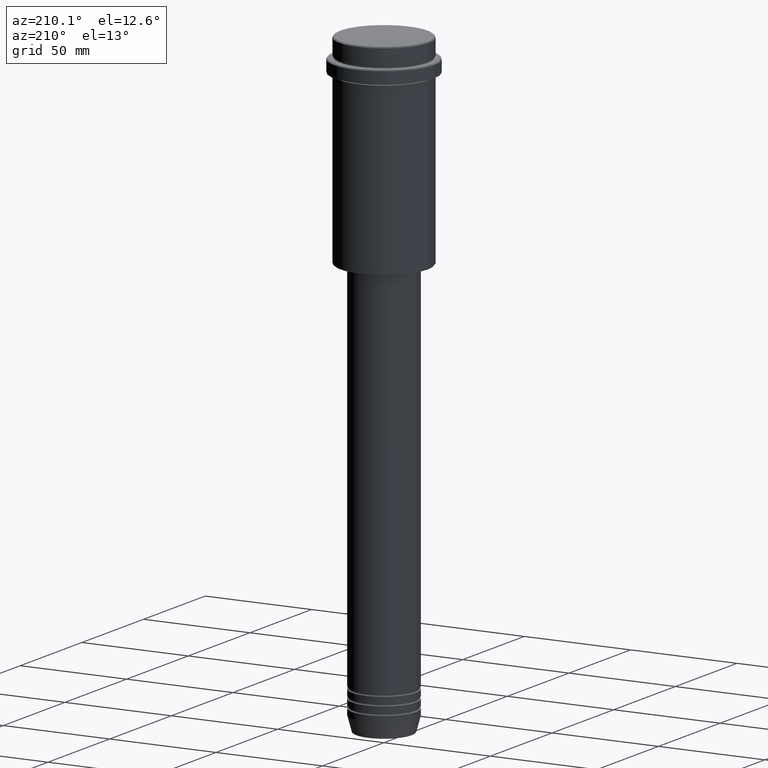
[diagram: clean part render]
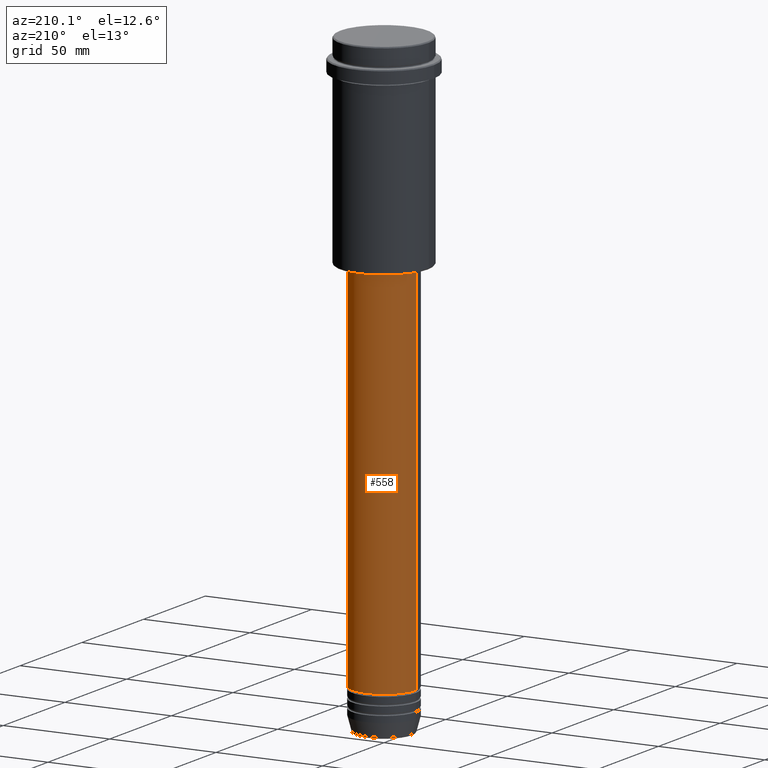
[diagram: same view with one face highlighted and labeled with its STEP entity id]
A machine part, auxiliary view. The second image highlights one B-rep face of the part: STEP entity #558.
In plain terms, the highlighted cylindrical surface (partial cylindrical patch) has radius 15 mm, axis along (-0, -0, 1).
Its self-contained STEP definition (entity closure, byte-faithful):
#9 = EDGE_CURVE ( 'NONE', #802, #1168, #999, .T. ) ;
#28 = DIRECTION ( 'NONE',  ( 1.000000000000000000, 0.000000000000000000, 0.000000000000000000 ) ) ;
#73 = VERTEX_POINT ( 'NONE', #118 ) ;
#94 = CYLINDRICAL_SURFACE ( 'NONE', #751, 15.00000000000000000 ) ;
#104 = EDGE_CURVE ( 'NONE', #1405, #802, #878, .T. ) ;
#118 = CARTESIAN_POINT ( 'NONE',  ( -15.00000000000000000, 1.836970198721029589E-15, -270.9999999999998863 ) ) ;
#128 = CARTESIAN_POINT ( 'NONE',  ( 0.000000000000000000, 0.000000000000000000, -270.9999999999998863 ) ) ;
#198 = FACE_OUTER_BOUND ( 'NONE', #1152, .T. ) ;
#279 = DIRECTION ( 'NONE',  ( -0.000000000000000000, -0.000000000000000000, 1.000000000000000000 ) ) ;
#312 = DIRECTION ( 'NONE',  ( -0.000000000000000000, -0.000000000000000000, 1.000000000000000000 ) ) ;
#453 = CARTESIAN_POINT ( 'NONE',  ( -15.00000000000000000, 1.836970198721029589E-15, -95.99999999999991473 ) ) ;
#510 = DIRECTION ( 'NONE',  ( 1.000000000000000000, 0.000000000000000000, 0.000000000000000000 ) ) ;
#558 = ADVANCED_FACE ( 'NONE', ( #198 ), #94, .T. ) ;
#578 = CARTESIAN_POINT ( 'NONE',  ( 15.00000000000000000, 0.000000000000000000, -95.99999999999991473 ) ) ;
#603 = CARTESIAN_POINT ( 'NONE',  ( 0.000000000000000000, 0.000000000000000000, -95.99999999999991473 ) ) ;
#675 = DIRECTION ( 'NONE',  ( -0.000000000000000000, -0.000000000000000000, 1.000000000000000000 ) ) ;
#677 = EDGE_CURVE ( 'NONE', #1405, #73, #732, .T. ) ;
#732 = CIRCLE ( 'NONE', #753, 15.00000000000000000 ) ;
#751 = AXIS2_PLACEMENT_3D ( 'NONE', #768, #312, #1407 ) ;
#753 = AXIS2_PLACEMENT_3D ( 'NONE', #128, #675, #28 ) ;
#763 = ORIENTED_EDGE ( 'NONE', *, *, #677, .T. ) ;
#768 = CARTESIAN_POINT ( 'NONE',  ( 0.000000000000000000, 0.000000000000000000, 0.000000000000000000 ) ) ;
#802 = VERTEX_POINT ( 'NONE', #578 ) ;
#878 = LINE ( 'NONE', #1077, #1043 ) ;
#907 = AXIS2_PLACEMENT_3D ( 'NONE', #603, #279, #510 ) ;
#984 = CARTESIAN_POINT ( 'NONE',  ( 15.00000000000000000, 0.000000000000000000, -270.9999999999998863 ) ) ;
#999 = CIRCLE ( 'NONE', #907, 15.00000000000000000 ) ;
#1043 = VECTOR ( 'NONE', #1289, 1000.000000000000000 ) ;
#1055 = ORIENTED_EDGE ( 'NONE', *, *, #1079, .T. ) ;
#1058 = CARTESIAN_POINT ( 'NONE',  ( -15.00000000000000000, 1.836970198721029589E-15, 0.000000000000000000 ) ) ;
#1077 = CARTESIAN_POINT ( 'NONE',  ( 15.00000000000000000, 0.000000000000000000, 0.000000000000000000 ) ) ;
#1079 = EDGE_CURVE ( 'NONE', #73, #1168, #1402, .T. ) ;
#1090 = DIRECTION ( 'NONE',  ( -0.000000000000000000, -0.000000000000000000, 1.000000000000000000 ) ) ;
#1102 = ORIENTED_EDGE ( 'NONE', *, *, #104, .F. ) ;
#1152 = EDGE_LOOP ( 'NONE', ( #763, #1055, #1356, #1102 ) ) ;
#1168 = VERTEX_POINT ( 'NONE', #453 ) ;
#1289 = DIRECTION ( 'NONE',  ( -0.000000000000000000, -0.000000000000000000, 1.000000000000000000 ) ) ;
#1326 = VECTOR ( 'NONE', #1090, 1000.000000000000000 ) ;
#1356 = ORIENTED_EDGE ( 'NONE', *, *, #9, .F. ) ;
#1402 = LINE ( 'NONE', #1058, #1326 ) ;
#1405 = VERTEX_POINT ( 'NONE', #984 ) ;
#1407 = DIRECTION ( 'NONE',  ( 1.000000000000000000, 0.000000000000000000, 0.000000000000000000 ) ) ;